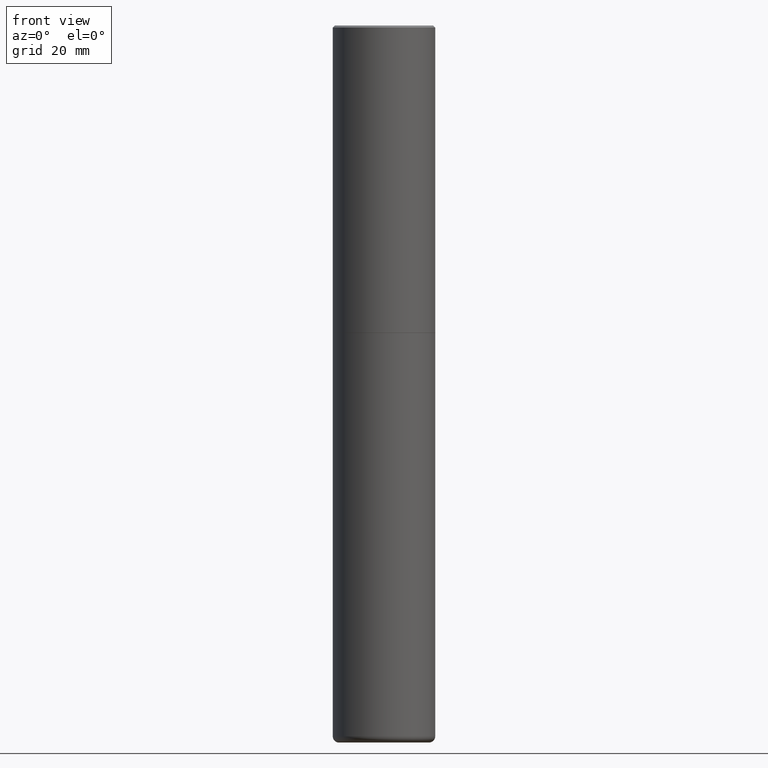
[diagram: clean part render]
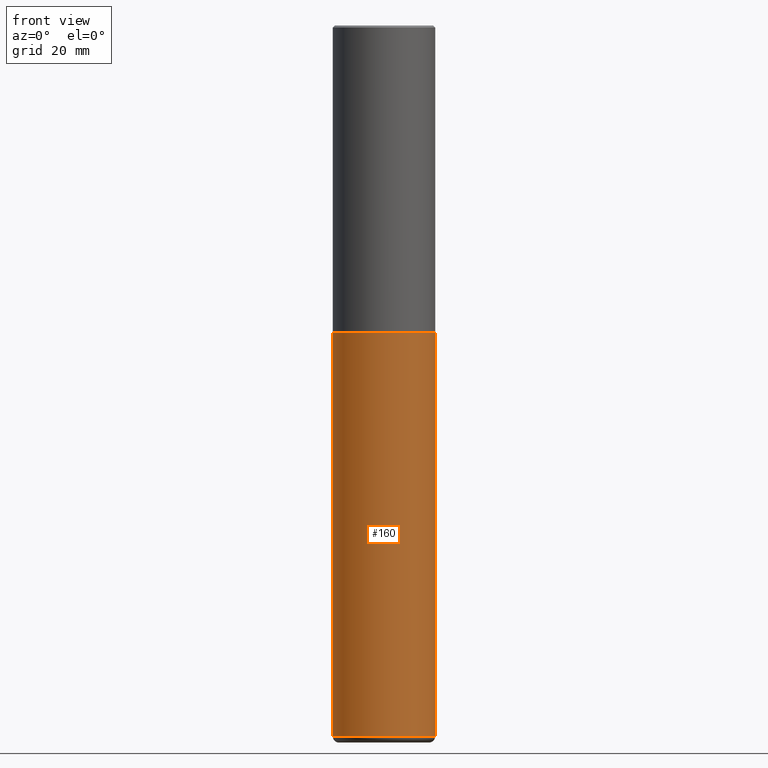
[diagram: same view with one face highlighted and labeled with its STEP entity id]
A machine part, front view. The second image highlights one B-rep face of the part: STEP entity #160.
In plain terms, the highlighted cylindrical surface (partial cylindrical patch) has radius 12.7 mm, axis along (-0, 0, 1).
Its self-contained STEP definition (entity closure, byte-faithful):
#13 = VECTOR ( 'NONE', #130, 39.37007874015748143 ) ;
#41 = CARTESIAN_POINT ( 'NONE',  ( 0.000000000000000000, 0.000000000000000000, 0.000000000000000000 ) ) ;
#42 = DIRECTION ( 'NONE',  ( 1.000000000000000000, -6.982962677686269077E-15, 0.000000000000000000 ) ) ;
#67 = EDGE_CURVE ( 'NONE', #241, #297, #350, .T. ) ;
#72 = FACE_OUTER_BOUND ( 'NONE', #123, .T. ) ;
#92 = DIRECTION ( 'NONE',  ( -2.445468806185136597E-29, 3.491481338843145583E-15, 1.000000000000000000 ) ) ;
#99 = ORIENTED_EDGE ( 'NONE', *, *, #67, .F. ) ;
#102 = AXIS2_PLACEMENT_3D ( 'NONE', #381, #92, #225 ) ;
#103 = EDGE_CURVE ( 'NONE', #334, #236, #372, .T. ) ;
#104 = CARTESIAN_POINT ( 'NONE',  ( -0.5000000000000002220, -2.067816681277092470E-14, -6.939999999999999503 ) ) ;
#105 = DIRECTION ( 'NONE',  ( 1.000000000000000000, -6.982962677686266711E-15, 4.876176775795935793E-29 ) ) ;
#121 = ORIENTED_EDGE ( 'NONE', *, *, #322, .T. ) ;
#123 = EDGE_LOOP ( 'NONE', ( #285, #311, #121, #99 ) ) ;
#130 = DIRECTION ( 'NONE',  ( -2.445468806185136877E-29, 3.491481338843145188E-15, 1.000000000000000000 ) ) ;
#134 = AXIS2_PLACEMENT_3D ( 'NONE', #209, #205, #42 ) ;
#160 = ADVANCED_FACE ( 'NONE', ( #72 ), #212, .T. ) ;
#169 = LINE ( 'NONE', #176, #13 ) ;
#176 = CARTESIAN_POINT ( 'NONE',  ( -0.5000000000000000000, 3.552713678800500929E-15, -2.459467545127452891E-29 ) ) ;
#205 = DIRECTION ( 'NONE',  ( -2.445468806185136597E-29, 3.491481338843145583E-15, 1.000000000000000000 ) ) ;
#207 = CARTESIAN_POINT ( 'NONE',  ( 0.5000000000000000000, -3.491481338843133355E-15, 2.438088387897967896E-29 ) ) ;
#209 = CARTESIAN_POINT ( 'NONE',  ( 1.697155351492484915E-28, -2.423088049157142879E-14, -6.939999999999999503 ) ) ;
#212 = CYLINDRICAL_SURFACE ( 'NONE', #327, 0.5000000000000000000 ) ;
#225 = DIRECTION ( 'NONE',  ( 1.000000000000000000, -6.982962677686266711E-15, 0.000000000000000000 ) ) ;
#236 = VERTEX_POINT ( 'NONE', #379 ) ;
#238 = VECTOR ( 'NONE', #258, 39.37007874015748143 ) ;
#241 = VERTEX_POINT ( 'NONE', #283 ) ;
#258 = DIRECTION ( 'NONE',  ( -2.445468806185136877E-29, 3.491481338843145188E-15, 1.000000000000000000 ) ) ;
#263 = DIRECTION ( 'NONE',  ( -2.445468806185136597E-29, 3.491481338843145583E-15, 1.000000000000000000 ) ) ;
#283 = CARTESIAN_POINT ( 'NONE',  ( -0.5000000000000000000, -1.379994857524993085E-14, -2.999999999999999556 ) ) ;
#285 = ORIENTED_EDGE ( 'NONE', *, *, #343, .F. ) ;
#297 = VERTEX_POINT ( 'NONE', #390 ) ;
#311 = ORIENTED_EDGE ( 'NONE', *, *, #103, .T. ) ;
#322 = EDGE_CURVE ( 'NONE', #236, #297, #351, .T. ) ;
#327 = AXIS2_PLACEMENT_3D ( 'NONE', #41, #263, #105 ) ;
#334 = VERTEX_POINT ( 'NONE', #104 ) ;
#343 = EDGE_CURVE ( 'NONE', #334, #241, #169, .T. ) ;
#350 = CIRCLE ( 'NONE', #102, 0.5000000000000000000 ) ;
#351 = LINE ( 'NONE', #207, #238 ) ;
#372 = CIRCLE ( 'NONE', #134, 0.5000000000000001110 ) ;
#379 = CARTESIAN_POINT ( 'NONE',  ( 0.5000000000000002220, -2.772236183041456530E-14, -6.939999999999999503 ) ) ;
#381 = CARTESIAN_POINT ( 'NONE',  ( 7.336406418555408669E-29, -1.047444401652943478E-14, -2.999999999999999556 ) ) ;
#390 = CARTESIAN_POINT ( 'NONE',  ( 0.5000000000000000000, -1.396592535537256813E-14, -2.999999999999999556 ) ) ;